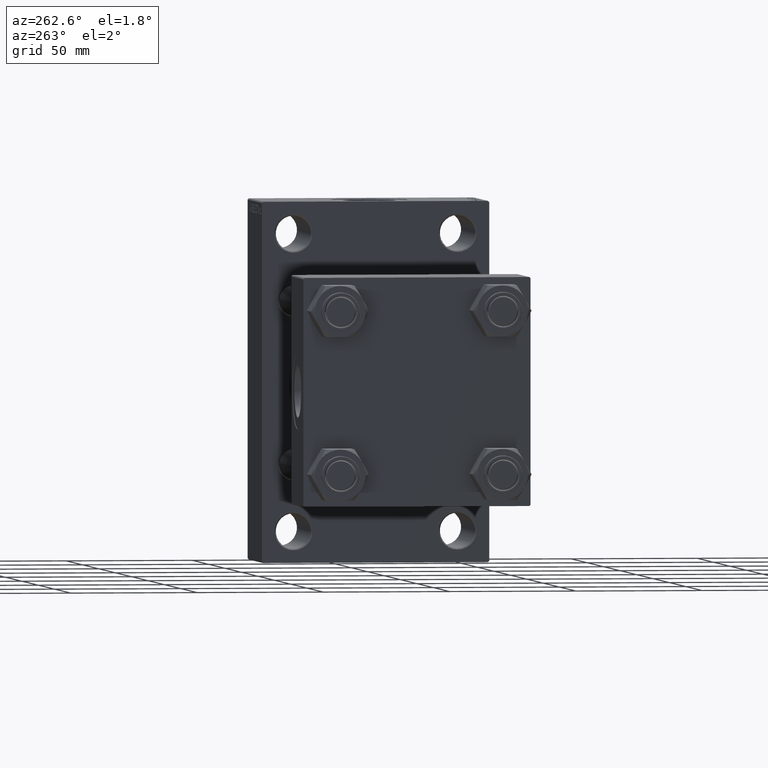
[diagram: clean part render]
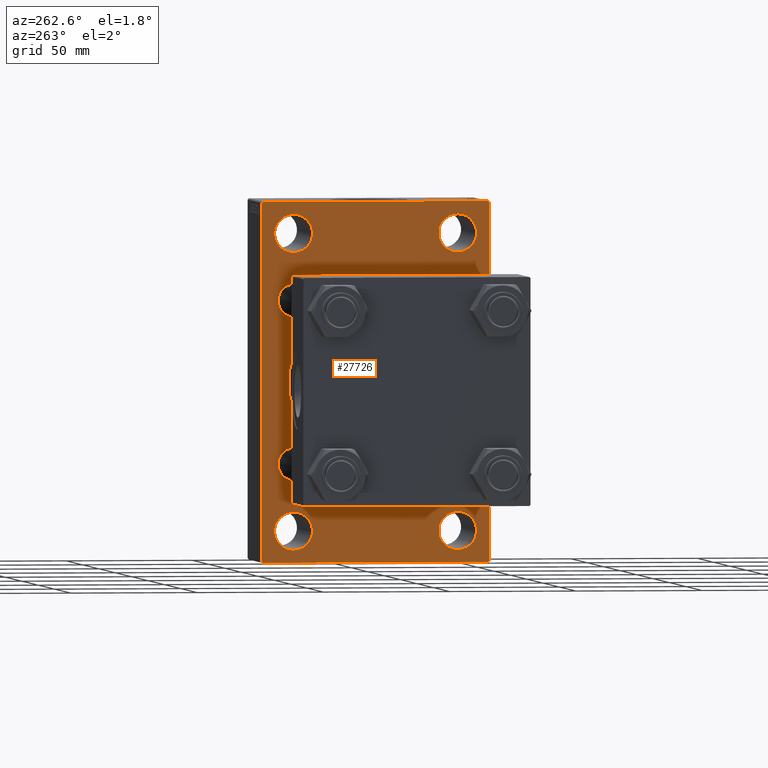
[diagram: same view with one face highlighted and labeled with its STEP entity id]
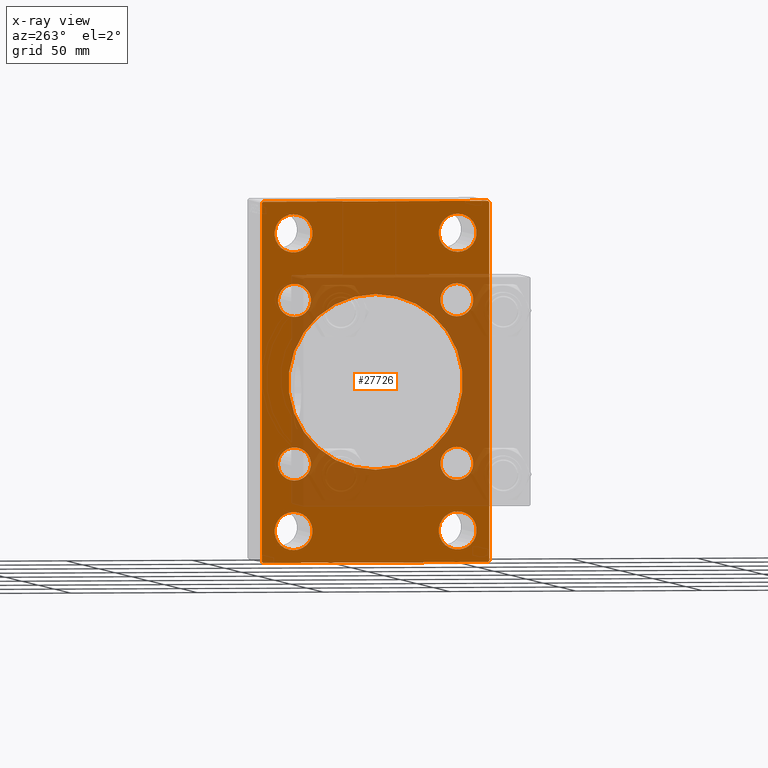
[diagram: x-ray of the same camera — body ghosted, the highlighted face saturated]
A machine part, auxiliary view. The second image highlights one B-rep face of the part: STEP entity #27726.
The next image is the same camera in x-ray: the body ghosted, the highlighted face saturated — about 39% of this face is hidden behind the body in this view.
In plain terms, the highlighted planar face has unit normal (-1, 0, 0).
Its self-contained STEP definition (entity closure, byte-faithful):
#87 = DIRECTION ( 'NONE',  ( 0.000000000000000000, 0.000000000000000000, 1.000000000000000000 ) ) ;
#304 = FACE_BOUND ( 'NONE', #22073, .T. ) ;
#550 = FACE_OUTER_BOUND ( 'NONE', #20304, .T. ) ;
#688 = EDGE_CURVE ( 'NONE', #8878, #12547, #8101, .T. ) ;
#822 = DIRECTION ( 'NONE',  ( 1.000000000000000000, -0.000000000000000000, 0.000000000000000000 ) ) ;
#830 = CIRCLE ( 'NONE', #20742, 7.500000000000041744 ) ;
#1101 = CARTESIAN_POINT ( 'NONE',  ( 126.0000000000000000, -32.50000000000000000, 58.50000000000000711 ) ) ;
#1109 = CARTESIAN_POINT ( 'NONE',  ( 126.0000000000000000, -32.14999999999997726, -32.15000000000001279 ) ) ;
#1321 = CIRCLE ( 'NONE', #15868, 7.500000000000034639 ) ;
#1461 = AXIS2_PLACEMENT_3D ( 'NONE', #23218, #23455, #37833 ) ;
#2450 = LINE ( 'NONE', #31685, #44084 ) ;
#2629 = ORIENTED_EDGE ( 'NONE', *, *, #17733, .T. ) ;
#2888 = EDGE_LOOP ( 'NONE', ( #37091, #44909 ) ) ;
#2943 = CIRCLE ( 'NONE', #13664, 34.50000000000000000 ) ;
#2969 = DIRECTION ( 'NONE',  ( 0.000000000000000000, 0.7071067811865474617, -0.7071067811865474617 ) ) ;
#3573 = DIRECTION ( 'NONE',  ( 0.000000000000000000, 0.000000000000000000, 1.000000000000000000 ) ) ;
#3766 = DIRECTION ( 'NONE',  ( 0.000000000000000000, -4.886545002751570165E-17, -1.000000000000000000 ) ) ;
#3824 = ORIENTED_EDGE ( 'NONE', *, *, #23535, .T. ) ;
#4015 = CARTESIAN_POINT ( 'NONE',  ( 126.0000000000000000, 32.50000000000000711, 50.99999999999997868 ) ) ;
#4468 = CARTESIAN_POINT ( 'NONE',  ( 126.0000000000000000, 32.14999999999999147, 32.15000000000000568 ) ) ;
#4571 = AXIS2_PLACEMENT_3D ( 'NONE', #4702, #33705, #44968 ) ;
#4702 = CARTESIAN_POINT ( 'NONE',  ( 126.0000000000000000, 32.50000000000000711, -58.50000000000000000 ) ) ;
#4723 = CARTESIAN_POINT ( 'NONE',  ( 126.0000000000000000, 45.00000000000002132, 71.00000000000000000 ) ) ;
#4754 = CARTESIAN_POINT ( 'NONE',  ( 126.0000000000000000, -32.50000000000000000, -50.99999999999995026 ) ) ;
#5104 = EDGE_LOOP ( 'NONE', ( #47270, #30811 ) ) ;
#5601 = EDGE_CURVE ( 'NONE', #7425, #18383, #2450, .T. ) ;
#6306 = VECTOR ( 'NONE', #2969, 1000.000000000000114 ) ;
#6342 = CARTESIAN_POINT ( 'NONE',  ( 126.0000000000000000, 1.622946243093158675E-15, -34.50000000000000000 ) ) ;
#6408 = EDGE_LOOP ( 'NONE', ( #34521, #2629 ) ) ;
#6625 = CARTESIAN_POINT ( 'NONE',  ( 126.0000000000000000, 45.00000000000001421, -70.99999999999998579 ) ) ;
#6830 = CARTESIAN_POINT ( 'NONE',  ( 126.0000000000000000, 32.50000000000000711, 58.50000000000000711 ) ) ;
#7260 = EDGE_CURVE ( 'NONE', #14286, #10534, #1321, .T. ) ;
#7407 = AXIS2_PLACEMENT_3D ( 'NONE', #47241, #35965, #10553 ) ;
#7409 = DIRECTION ( 'NONE',  ( -0.000000000000000000, -0.7071067811865376918, -0.7071067811865574537 ) ) ;
#7425 = VERTEX_POINT ( 'NONE', #24795 ) ;
#7640 = VECTOR ( 'NONE', #7409, 999.9999999999998863 ) ;
#7742 = DIRECTION ( 'NONE',  ( 0.000000000000000000, -0.7071067811865574537, 0.7071067811865376918 ) ) ;
#7986 = EDGE_CURVE ( 'NONE', #37459, #45726, #37304, .T. ) ;
#8072 = DIRECTION ( 'NONE',  ( 0.000000000000000000, 0.000000000000000000, -1.000000000000000000 ) ) ;
#8078 = LINE ( 'NONE', #4723, #22822 ) ;
#8092 = ORIENTED_EDGE ( 'NONE', *, *, #35000, .T. ) ;
#8101 = CIRCLE ( 'NONE', #19597, 7.500000000000034639 ) ;
#8456 = DIRECTION ( 'NONE',  ( 0.000000000000000000, 0.000000000000000000, 1.000000000000000000 ) ) ;
#8878 = VERTEX_POINT ( 'NONE', #36072 ) ;
#8922 = CIRCLE ( 'NONE', #41827, 7.500000000000034639 ) ;
#9131 = CIRCLE ( 'NONE', #9896, 6.499999999999999112 ) ;
#9453 = CARTESIAN_POINT ( 'NONE',  ( 126.0000000000000000, 32.50000000000000711, -50.99999999999996447 ) ) ;
#9515 = VERTEX_POINT ( 'NONE', #31923 ) ;
#9661 = CIRCLE ( 'NONE', #32615, 6.500000000000005329 ) ;
#9723 = VECTOR ( 'NONE', #32618, 1000.000000000000000 ) ;
#9896 = AXIS2_PLACEMENT_3D ( 'NONE', #39547, #31897, #31659 ) ;
#10104 = DIRECTION ( 'NONE',  ( 0.000000000000000000, 0.000000000000000000, 1.000000000000000000 ) ) ;
#10199 = AXIS2_PLACEMENT_3D ( 'NONE', #44171, #43701, #15165 ) ;
#10534 = VERTEX_POINT ( 'NONE', #33578 ) ;
#10553 = DIRECTION ( 'NONE',  ( 0.000000000000000000, 0.000000000000000000, 1.000000000000000000 ) ) ;
#10683 = ORIENTED_EDGE ( 'NONE', *, *, #36534, .F. ) ;
#10739 = CIRCLE ( 'NONE', #45224, 7.500000000000034639 ) ;
#10808 = VERTEX_POINT ( 'NONE', #22245 ) ;
#11217 = CIRCLE ( 'NONE', #27289, 7.500000000000041744 ) ;
#11465 = CARTESIAN_POINT ( 'NONE',  ( 126.0000000000000000, 57.75000000000061817, -57.74999999999901235 ) ) ;
#11578 = ORIENTED_EDGE ( 'NONE', *, *, #15134, .T. ) ;
#11815 = ORIENTED_EDGE ( 'NONE', *, *, #38187, .T. ) ;
#11892 = CARTESIAN_POINT ( 'NONE',  ( 126.0000000000000000, -2.602085213965210642E-15, 0.000000000000000000 ) ) ;
#12127 = DIRECTION ( 'NONE',  ( 1.000000000000000000, -0.000000000000000000, 0.000000000000000000 ) ) ;
#12357 = ORIENTED_EDGE ( 'NONE', *, *, #42452, .T. ) ;
#12511 = CARTESIAN_POINT ( 'NONE',  ( 126.0000000000000000, -32.50000000000000000, 58.50000000000000711 ) ) ;
#12547 = VERTEX_POINT ( 'NONE', #4015 ) ;
#12741 = VECTOR ( 'NONE', #7742, 999.9999999999998863 ) ;
#13363 = DIRECTION ( 'NONE',  ( 0.000000000000000000, 0.000000000000000000, 1.000000000000000000 ) ) ;
#13623 = AXIS2_PLACEMENT_3D ( 'NONE', #1109, #12127, #26760 ) ;
#13664 = AXIS2_PLACEMENT_3D ( 'NONE', #11892, #32762, #8072 ) ;
#13926 = EDGE_LOOP ( 'NONE', ( #45496, #12357 ) ) ;
#14123 = DIRECTION ( 'NONE',  ( 1.000000000000000000, -0.000000000000000000, 0.000000000000000000 ) ) ;
#14286 = VERTEX_POINT ( 'NONE', #36162 ) ;
#14370 = VERTEX_POINT ( 'NONE', #36275 ) ;
#14506 = DIRECTION ( 'NONE',  ( 0.000000000000000000, 0.000000000000000000, 1.000000000000000000 ) ) ;
#14734 = DIRECTION ( 'NONE',  ( 0.000000000000000000, 0.000000000000000000, 1.000000000000000000 ) ) ;
#14918 = FACE_BOUND ( 'NONE', #13926, .T. ) ;
#15134 = EDGE_CURVE ( 'NONE', #46494, #19018, #28994, .T. ) ;
#15165 = DIRECTION ( 'NONE',  ( -0.000000000000000000, 0.000000000000000000, 1.000000000000000000 ) ) ;
#15593 = CARTESIAN_POINT ( 'NONE',  ( 126.0000000000000000, -32.14999999999997726, 38.65000000000002700 ) ) ;
#15835 = EDGE_CURVE ( 'NONE', #14370, #33704, #9131, .T. ) ;
#15868 = AXIS2_PLACEMENT_3D ( 'NONE', #1101, #44497, #23387 ) ;
#16173 = CARTESIAN_POINT ( 'NONE',  ( 126.0000000000000000, -32.50000000000000000, -66.00000000000002842 ) ) ;
#16309 = VERTEX_POINT ( 'NONE', #18379 ) ;
#16501 = CARTESIAN_POINT ( 'NONE',  ( 126.0000000000000000, -32.14999999999997726, 32.15000000000001279 ) ) ;
#17733 = EDGE_CURVE ( 'NONE', #25911, #20154, #36709, .T. ) ;
#17858 = CARTESIAN_POINT ( 'NONE',  ( 126.0000000000000000, 32.14999999999999147, -38.65000000000001279 ) ) ;
#18089 = DIRECTION ( 'NONE',  ( 1.000000000000000000, -0.000000000000000000, 0.000000000000000000 ) ) ;
#18300 = CARTESIAN_POINT ( 'NONE',  ( 126.0000000000000000, -32.50000000000000000, -58.49999999999999289 ) ) ;
#18333 = CARTESIAN_POINT ( 'NONE',  ( 126.0000000000000000, -32.14999999999997726, 32.15000000000001279 ) ) ;
#18379 = CARTESIAN_POINT ( 'NONE',  ( 126.0000000000000000, 45.00000000000002132, 70.50000000000000000 ) ) ;
#18383 = VERTEX_POINT ( 'NONE', #24145 ) ;
#18389 = EDGE_LOOP ( 'NONE', ( #3824, #11578 ) ) ;
#18650 = CARTESIAN_POINT ( 'NONE',  ( 126.0000000000000000, 44.50000000000002132, 71.00000000000000000 ) ) ;
#18935 = AXIS2_PLACEMENT_3D ( 'NONE', #16501, #39480, #13363 ) ;
#19018 = VERTEX_POINT ( 'NONE', #37326 ) ;
#19042 = CARTESIAN_POINT ( 'NONE',  ( 126.0000000000000000, 32.14999999999999147, 38.65000000000001279 ) ) ;
#19056 = ORIENTED_EDGE ( 'NONE', *, *, #30642, .T. ) ;
#19235 = LINE ( 'NONE', #33136, #12741 ) ;
#19291 = EDGE_CURVE ( 'NONE', #10534, #14286, #10739, .T. ) ;
#19402 = ORIENTED_EDGE ( 'NONE', *, *, #41801, .T. ) ;
#19597 = AXIS2_PLACEMENT_3D ( 'NONE', #6830, #18089, #32710 ) ;
#19978 = EDGE_CURVE ( 'NONE', #10808, #22911, #21464, .T. ) ;
#20154 = VERTEX_POINT ( 'NONE', #9453 ) ;
#20272 = DIRECTION ( 'NONE',  ( 1.000000000000000000, 0.000000000000000000, 0.000000000000000000 ) ) ;
#20304 = EDGE_LOOP ( 'NONE', ( #26372, #43271, #22306, #26865, #10683, #40774, #41818, #24124 ) ) ;
#20416 = CARTESIAN_POINT ( 'NONE',  ( 126.0000000000000000, 32.14999999999999147, -32.15000000000000568 ) ) ;
#20510 = VERTEX_POINT ( 'NONE', #4754 ) ;
#20532 = VERTEX_POINT ( 'NONE', #18650 ) ;
#20742 = AXIS2_PLACEMENT_3D ( 'NONE', #18300, #32926, #87 ) ;
#20808 = VERTEX_POINT ( 'NONE', #6342 ) ;
#20913 = EDGE_CURVE ( 'NONE', #46614, #20510, #830, .T. ) ;
#21174 = CARTESIAN_POINT ( 'NONE',  ( 126.0000000000000000, 57.75000000000000000, 57.75000000000000000 ) ) ;
#21464 = LINE ( 'NONE', #6625, #45975 ) ;
#22073 = EDGE_LOOP ( 'NONE', ( #19056, #37191 ) ) ;
#22139 = EDGE_CURVE ( 'NONE', #7425, #9515, #24049, .T. ) ;
#22245 = CARTESIAN_POINT ( 'NONE',  ( 126.0000000000000000, 44.50000000000001421, -70.99999999999998579 ) ) ;
#22306 = ORIENTED_EDGE ( 'NONE', *, *, #22139, .F. ) ;
#22578 = CARTESIAN_POINT ( 'NONE',  ( 126.0000000000000000, 32.50000000000000711, 58.50000000000000711 ) ) ;
#22618 = DIRECTION ( 'NONE',  ( 0.000000000000000000, 0.000000000000000000, 1.000000000000000000 ) ) ;
#22735 = LINE ( 'NONE', #11465, #7640 ) ;
#22822 = VECTOR ( 'NONE', #3766, 1000.000000000000000 ) ;
#22911 = VERTEX_POINT ( 'NONE', #45191 ) ;
#23023 = EDGE_LOOP ( 'NONE', ( #40656, #23320 ) ) ;
#23218 = CARTESIAN_POINT ( 'NONE',  ( 126.0000000000000000, 32.14999999999999147, -32.15000000000000568 ) ) ;
#23320 = ORIENTED_EDGE ( 'NONE', *, *, #19291, .T. ) ;
#23340 = CARTESIAN_POINT ( 'NONE',  ( 126.0000000000000000, -32.50000000000000000, -58.49999999999999289 ) ) ;
#23387 = DIRECTION ( 'NONE',  ( 0.000000000000000000, 0.000000000000000000, 1.000000000000000000 ) ) ;
#23455 = DIRECTION ( 'NONE',  ( 1.000000000000000000, -0.000000000000000000, 0.000000000000000000 ) ) ;
#23535 = EDGE_CURVE ( 'NONE', #19018, #46494, #39183, .T. ) ;
#23995 = EDGE_CURVE ( 'NONE', #20532, #16309, #28854, .T. ) ;
#24049 = LINE ( 'NONE', #38673, #36845 ) ;
#24052 = CIRCLE ( 'NONE', #30195, 6.499999999999999112 ) ;
#24124 = ORIENTED_EDGE ( 'NONE', *, *, #46119, .T. ) ;
#24145 = CARTESIAN_POINT ( 'NONE',  ( 126.0000000000000000, -44.49999999999992184, 70.99999999999998579 ) ) ;
#24795 = CARTESIAN_POINT ( 'NONE',  ( 126.0000000000000000, -44.99999999999997158, 70.49999999999995737 ) ) ;
#24806 = VERTEX_POINT ( 'NONE', #27548 ) ;
#25239 = FACE_BOUND ( 'NONE', #23023, .T. ) ;
#25911 = VERTEX_POINT ( 'NONE', #31325 ) ;
#25959 = FACE_BOUND ( 'NONE', #27040, .T. ) ;
#26372 = ORIENTED_EDGE ( 'NONE', *, *, #19978, .T. ) ;
#26760 = DIRECTION ( 'NONE',  ( 0.000000000000000000, 0.000000000000000000, 1.000000000000000000 ) ) ;
#26865 = ORIENTED_EDGE ( 'NONE', *, *, #5601, .T. ) ;
#26948 = AXIS2_PLACEMENT_3D ( 'NONE', #20416, #28084, #10104 ) ;
#27040 = EDGE_LOOP ( 'NONE', ( #11815, #29495 ) ) ;
#27289 = AXIS2_PLACEMENT_3D ( 'NONE', #23340, #822, #22618 ) ;
#27548 = CARTESIAN_POINT ( 'NONE',  ( 126.0000000000000000, -2.602085213965210642E-15, 34.50000000000000000 ) ) ;
#27726 = ADVANCED_FACE ( 'NONE', ( #25239, #25959, #29798, #33627, #33145, #304, #32671, #29077, #14918, #550 ), #29554, .T. ) ;
#28018 = EDGE_LOOP ( 'NONE', ( #19402, #8092 ) ) ;
#28084 = DIRECTION ( 'NONE',  ( 1.000000000000000000, -0.000000000000000000, 0.000000000000000000 ) ) ;
#28357 = CARTESIAN_POINT ( 'NONE',  ( 126.0000000000000000, -32.14999999999997726, -38.65000000000001990 ) ) ;
#28854 = LINE ( 'NONE', #21174, #6306 ) ;
#28907 = DIRECTION ( 'NONE',  ( 0.000000000000000000, -1.000000000000000000, -1.541976423090495633E-16 ) ) ;
#28994 = CIRCLE ( 'NONE', #1461, 6.500000000000005329 ) ;
#29077 = FACE_BOUND ( 'NONE', #28018, .T. ) ;
#29495 = ORIENTED_EDGE ( 'NONE', *, *, #20913, .T. ) ;
#29554 = PLANE ( 'NONE',  #10199 ) ;
#29798 = FACE_BOUND ( 'NONE', #6408, .T. ) ;
#30195 = AXIS2_PLACEMENT_3D ( 'NONE', #4468, #14123, #3573 ) ;
#30304 = AXIS2_PLACEMENT_3D ( 'NONE', #45934, #20272, #45701 ) ;
#30642 = EDGE_CURVE ( 'NONE', #33704, #14370, #24052, .T. ) ;
#30811 = ORIENTED_EDGE ( 'NONE', *, *, #34738, .T. ) ;
#31325 = CARTESIAN_POINT ( 'NONE',  ( 126.0000000000000000, 32.50000000000000711, -66.00000000000002842 ) ) ;
#31659 = DIRECTION ( 'NONE',  ( 0.000000000000000000, 0.000000000000000000, 1.000000000000000000 ) ) ;
#31685 = CARTESIAN_POINT ( 'NONE',  ( 126.0000000000000000, -57.75000000000028422, 57.74999999999948130 ) ) ;
#31897 = DIRECTION ( 'NONE',  ( 1.000000000000000000, -0.000000000000000000, 0.000000000000000000 ) ) ;
#31923 = CARTESIAN_POINT ( 'NONE',  ( 126.0000000000000000, -44.99999999999997158, -70.49999999999998579 ) ) ;
#32615 = AXIS2_PLACEMENT_3D ( 'NONE', #18333, #46880, #14734 ) ;
#32618 = DIRECTION ( 'NONE',  ( 0.000000000000000000, -1.000000000000000000, -1.541976423090495387E-16 ) ) ;
#32643 = CIRCLE ( 'NONE', #7407, 6.500000000000005329 ) ;
#32671 = FACE_BOUND ( 'NONE', #18389, .T. ) ;
#32710 = DIRECTION ( 'NONE',  ( 0.000000000000000000, 0.000000000000000000, 1.000000000000000000 ) ) ;
#32762 = DIRECTION ( 'NONE',  ( 1.000000000000000000, 0.000000000000000000, 0.000000000000000000 ) ) ;
#32926 = DIRECTION ( 'NONE',  ( 1.000000000000000000, -0.000000000000000000, 0.000000000000000000 ) ) ;
#33136 = CARTESIAN_POINT ( 'NONE',  ( 126.0000000000000000, -57.74999999999934630, -57.75000000000095213 ) ) ;
#33145 = FACE_BOUND ( 'NONE', #2888, .T. ) ;
#33380 = DIRECTION ( 'NONE',  ( 1.000000000000000000, -0.000000000000000000, 0.000000000000000000 ) ) ;
#33452 = EDGE_CURVE ( 'NONE', #24806, #20808, #42537, .T. ) ;
#33578 = CARTESIAN_POINT ( 'NONE',  ( 126.0000000000000000, -32.50000000000000000, 50.99999999999997868 ) ) ;
#33627 = FACE_BOUND ( 'NONE', #5104, .T. ) ;
#33704 = VERTEX_POINT ( 'NONE', #19042 ) ;
#33705 = DIRECTION ( 'NONE',  ( 1.000000000000000000, -0.000000000000000000, 0.000000000000000000 ) ) ;
#34412 = EDGE_CURVE ( 'NONE', #45726, #37459, #9661, .T. ) ;
#34521 = ORIENTED_EDGE ( 'NONE', *, *, #42332, .T. ) ;
#34738 = EDGE_CURVE ( 'NONE', #12547, #8878, #8922, .T. ) ;
#34772 = EDGE_CURVE ( 'NONE', #22911, #9515, #19235, .T. ) ;
#35000 = EDGE_CURVE ( 'NONE', #38238, #35505, #32643, .T. ) ;
#35079 = CIRCLE ( 'NONE', #46583, 7.500000000000034639 ) ;
#35505 = VERTEX_POINT ( 'NONE', #38045 ) ;
#35736 = CARTESIAN_POINT ( 'NONE',  ( 126.0000000000000000, 45.00000000000002132, 71.00000000000000000 ) ) ;
#35892 = CARTESIAN_POINT ( 'NONE',  ( 126.0000000000000000, 45.00000000000001421, -70.49999999999997158 ) ) ;
#35965 = DIRECTION ( 'NONE',  ( 1.000000000000000000, -0.000000000000000000, 0.000000000000000000 ) ) ;
#36072 = CARTESIAN_POINT ( 'NONE',  ( 126.0000000000000000, 32.50000000000000711, 66.00000000000004263 ) ) ;
#36162 = CARTESIAN_POINT ( 'NONE',  ( 126.0000000000000000, -32.50000000000000000, 66.00000000000004263 ) ) ;
#36200 = LINE ( 'NONE', #35736, #9723 ) ;
#36275 = CARTESIAN_POINT ( 'NONE',  ( 126.0000000000000000, 32.14999999999999147, 25.65000000000000213 ) ) ;
#36534 = EDGE_CURVE ( 'NONE', #20532, #18383, #36200, .T. ) ;
#36709 = CIRCLE ( 'NONE', #4571, 7.500000000000034639 ) ;
#36845 = VECTOR ( 'NONE', #39566, 1000.000000000000000 ) ;
#37091 = ORIENTED_EDGE ( 'NONE', *, *, #7986, .T. ) ;
#37191 = ORIENTED_EDGE ( 'NONE', *, *, #15835, .T. ) ;
#37304 = CIRCLE ( 'NONE', #18935, 6.500000000000005329 ) ;
#37326 = CARTESIAN_POINT ( 'NONE',  ( 126.0000000000000000, 32.14999999999999147, -25.64999999999999858 ) ) ;
#37459 = VERTEX_POINT ( 'NONE', #15593 ) ;
#37833 = DIRECTION ( 'NONE',  ( 0.000000000000000000, 0.000000000000000000, 1.000000000000000000 ) ) ;
#38045 = CARTESIAN_POINT ( 'NONE',  ( 126.0000000000000000, -32.14999999999997726, -25.65000000000000568 ) ) ;
#38187 = EDGE_CURVE ( 'NONE', #20510, #46614, #11217, .T. ) ;
#38238 = VERTEX_POINT ( 'NONE', #28357 ) ;
#38673 = CARTESIAN_POINT ( 'NONE',  ( 126.0000000000000000, -44.99999999999997158, 70.99999999999998579 ) ) ;
#39111 = DIRECTION ( 'NONE',  ( -0.000000000000000000, 0.7071067811865425767, 0.7071067811865524577 ) ) ;
#39183 = CIRCLE ( 'NONE', #26948, 6.500000000000005329 ) ;
#39480 = DIRECTION ( 'NONE',  ( 1.000000000000000000, -0.000000000000000000, 0.000000000000000000 ) ) ;
#39547 = CARTESIAN_POINT ( 'NONE',  ( 126.0000000000000000, 32.14999999999999147, 32.15000000000000568 ) ) ;
#39566 = DIRECTION ( 'NONE',  ( 0.000000000000000000, 0.000000000000000000, -1.000000000000000000 ) ) ;
#39717 = DIRECTION ( 'NONE',  ( 0.000000000000000000, 0.000000000000000000, 1.000000000000000000 ) ) ;
#39929 = VERTEX_POINT ( 'NONE', #35892 ) ;
#40656 = ORIENTED_EDGE ( 'NONE', *, *, #7260, .T. ) ;
#40774 = ORIENTED_EDGE ( 'NONE', *, *, #23995, .T. ) ;
#41759 = DIRECTION ( 'NONE',  ( 1.000000000000000000, -0.000000000000000000, 0.000000000000000000 ) ) ;
#41801 = EDGE_CURVE ( 'NONE', #35505, #38238, #43450, .T. ) ;
#41818 = ORIENTED_EDGE ( 'NONE', *, *, #43157, .T. ) ;
#41827 = AXIS2_PLACEMENT_3D ( 'NONE', #22578, #33380, #8456 ) ;
#42332 = EDGE_CURVE ( 'NONE', #20154, #25911, #35079, .T. ) ;
#42452 = EDGE_CURVE ( 'NONE', #20808, #24806, #2943, .T. ) ;
#42537 = CIRCLE ( 'NONE', #30304, 34.50000000000000000 ) ;
#42857 = CARTESIAN_POINT ( 'NONE',  ( 126.0000000000000000, 32.50000000000000711, -58.50000000000000000 ) ) ;
#43157 = EDGE_CURVE ( 'NONE', #16309, #39929, #8078, .T. ) ;
#43271 = ORIENTED_EDGE ( 'NONE', *, *, #34772, .T. ) ;
#43450 = CIRCLE ( 'NONE', #13623, 6.500000000000005329 ) ;
#43701 = DIRECTION ( 'NONE',  ( -1.000000000000000000, 0.000000000000000000, -0.000000000000000000 ) ) ;
#44084 = VECTOR ( 'NONE', #39111, 1000.000000000000114 ) ;
#44171 = CARTESIAN_POINT ( 'NONE',  ( 126.0000000000000000, 0.000000000000000000, 0.000000000000000000 ) ) ;
#44497 = DIRECTION ( 'NONE',  ( 1.000000000000000000, -0.000000000000000000, 0.000000000000000000 ) ) ;
#44909 = ORIENTED_EDGE ( 'NONE', *, *, #34412, .T. ) ;
#44968 = DIRECTION ( 'NONE',  ( 0.000000000000000000, 0.000000000000000000, 1.000000000000000000 ) ) ;
#45191 = CARTESIAN_POINT ( 'NONE',  ( 126.0000000000000000, -44.49999999999991473, -71.00000000000000000 ) ) ;
#45224 = AXIS2_PLACEMENT_3D ( 'NONE', #12511, #41759, #14506 ) ;
#45496 = ORIENTED_EDGE ( 'NONE', *, *, #33452, .T. ) ;
#45701 = DIRECTION ( 'NONE',  ( 0.000000000000000000, 0.000000000000000000, -1.000000000000000000 ) ) ;
#45726 = VERTEX_POINT ( 'NONE', #46561 ) ;
#45934 = CARTESIAN_POINT ( 'NONE',  ( 126.0000000000000000, -2.602085213965210642E-15, 0.000000000000000000 ) ) ;
#45975 = VECTOR ( 'NONE', #28907, 1000.000000000000000 ) ;
#46119 = EDGE_CURVE ( 'NONE', #39929, #10808, #22735, .T. ) ;
#46494 = VERTEX_POINT ( 'NONE', #17858 ) ;
#46561 = CARTESIAN_POINT ( 'NONE',  ( 126.0000000000000000, -32.14999999999997726, 25.65000000000000213 ) ) ;
#46583 = AXIS2_PLACEMENT_3D ( 'NONE', #42857, #46923, #39717 ) ;
#46614 = VERTEX_POINT ( 'NONE', #16173 ) ;
#46880 = DIRECTION ( 'NONE',  ( 1.000000000000000000, -0.000000000000000000, 0.000000000000000000 ) ) ;
#46923 = DIRECTION ( 'NONE',  ( 1.000000000000000000, -0.000000000000000000, 0.000000000000000000 ) ) ;
#47241 = CARTESIAN_POINT ( 'NONE',  ( 126.0000000000000000, -32.14999999999997726, -32.15000000000001279 ) ) ;
#47270 = ORIENTED_EDGE ( 'NONE', *, *, #688, .T. ) ;